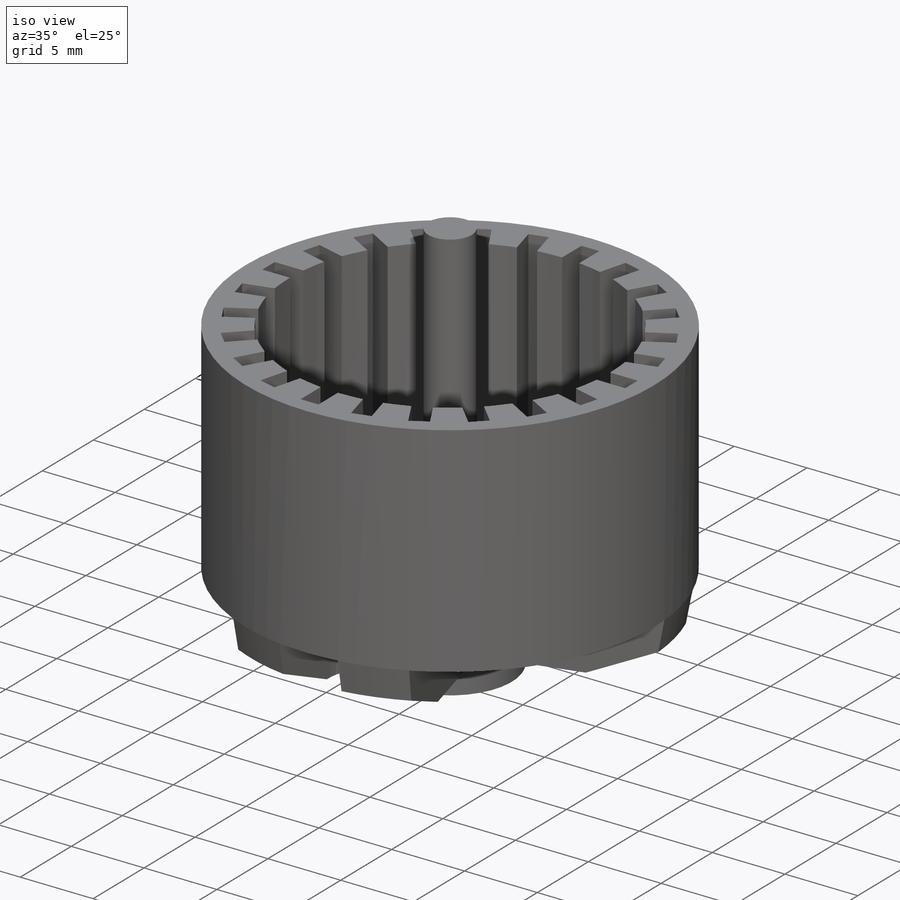
[diagram: iso view]
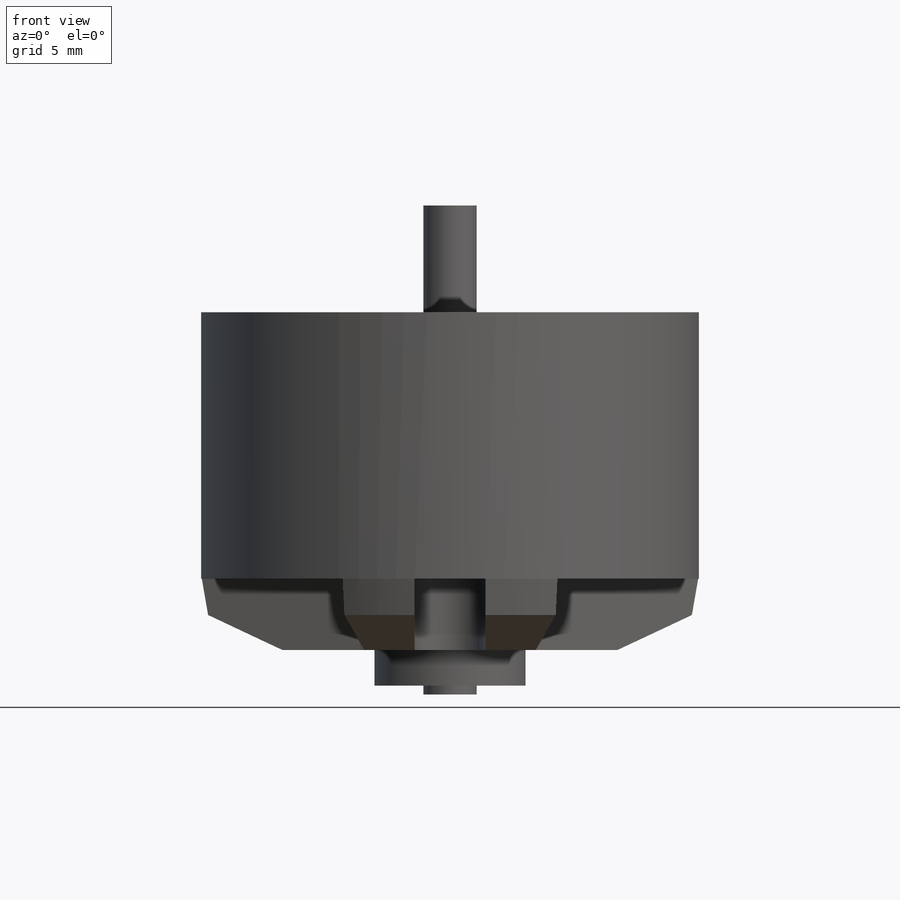
[diagram: front view]
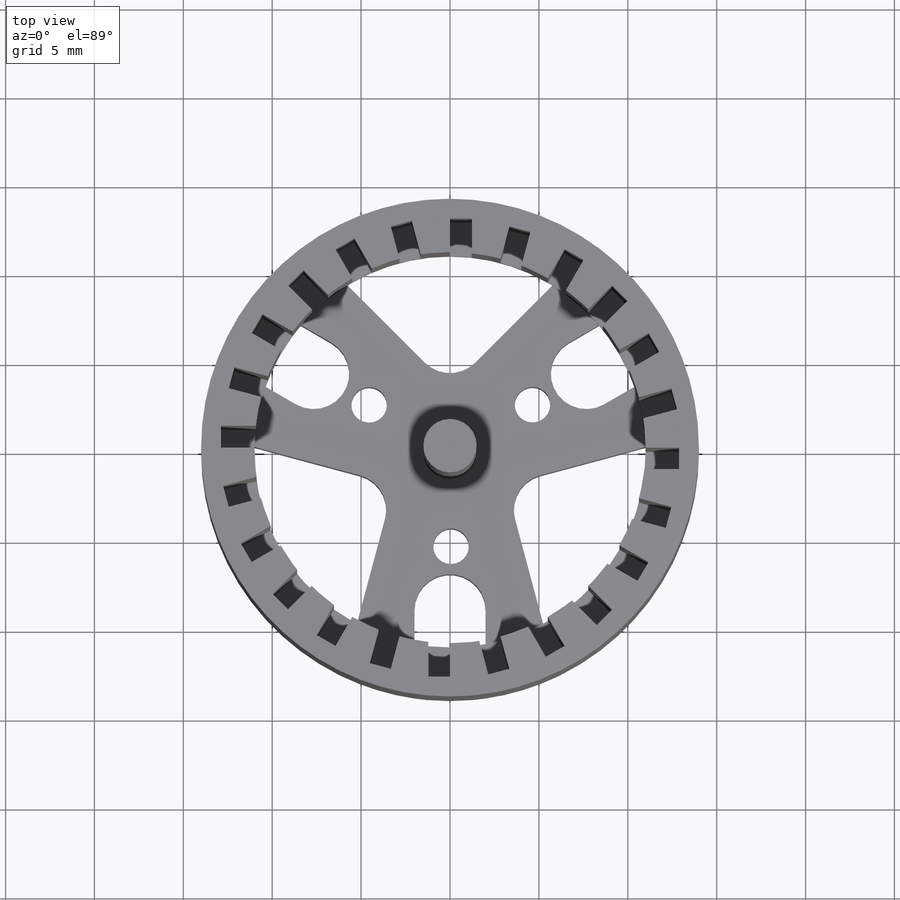
[diagram: top view]
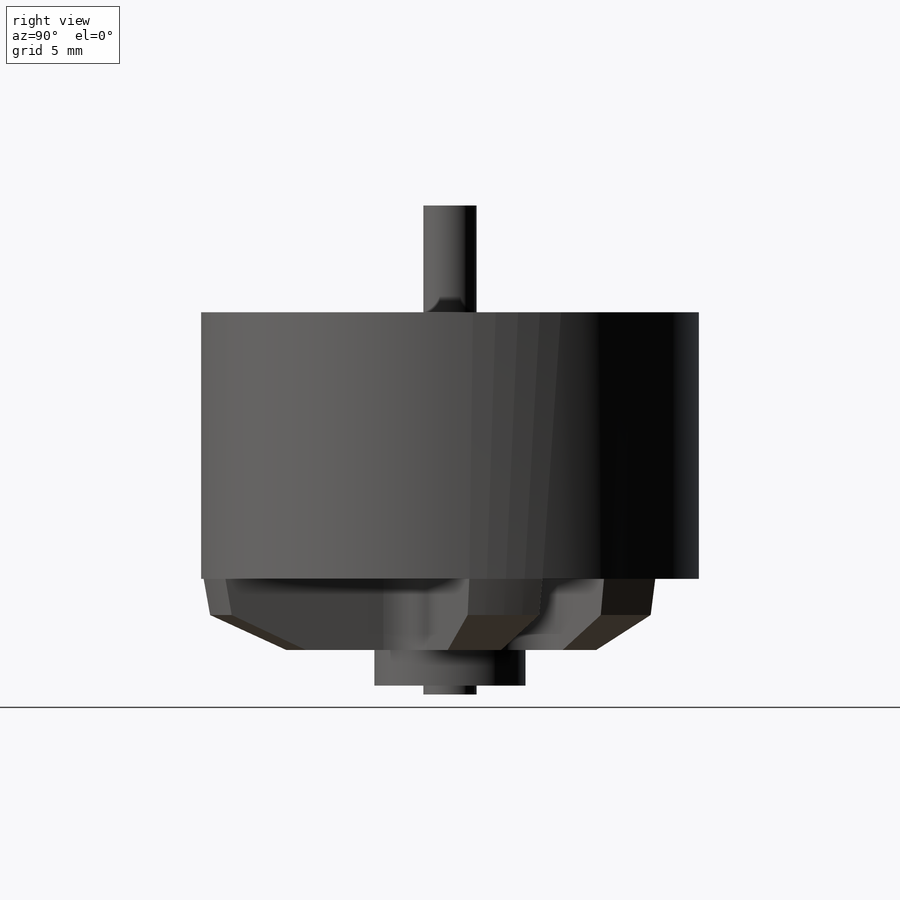
[diagram: right view]
SOLIDWORKS PART (.sldprt)
format: sldprt  version: not decoded by parser v0  size: 597,504 bytes
history: native  units: mm
features: sketch x10, extrude x4, cut_extrude x3, material x1, chamfer x1, fillet x1, hole x1 (+12 scaffold rows collapsed)
feature tree (33):
  scaffold x12  (default folders/planes/origin — collapsed)
  material  "Malzeme <belirli değil>"
  sketch  "Sketch1"  dims[D1=28.0mm D2=3.0mm]
  extrude  "OutShield"  Depth=15mm
  sketch  "Sketch3"  dims[D1=28.0mm]
  extrude  "AccessoriesHolder"  Depth=4mm
  sketch  "Sketch5"  dims[D1=8.5mm]
  extrude  "OuterShaft"  Depth=2mm
  sketch  "Sketch8"  dims[c1.D1=~12.124356mm c2.D1=70.0deg c2.D2=~19.79899mm c2.D3=~13.294692mm c3.D1=15.0mm c3.D3=15.0mm c3.D2=0.0mm c4.D1=~18.235068mm c5.D1=90.0deg c5.D2=~17.693364mm c6.D2=90.0deg c7.D2=~19.541117mm c7.D1=~17.693364mm c8.D1=90.0deg c9.D1=11.2mm c9.D2=3.6251mm c10.D2=60.0deg c11.D2=~2.769696mm c12.D2=120.0deg c12.D3=~1.236289mm c13.D3=120.0deg c13.D4=3.6251mm c13.D2=~65.973446mm]
  cut_extrude  "LightWeight"  Depth=4mm
  sketch  "Sketch9"  dims[c1.D1=14.0mm c1.D4=~2.10983mm c1.D2=1.5mm c2.D1=~3.815518mm c3.D1=90.0deg c4.D1=~7.442396mm c5.D1=~82.705322deg c6.D1=~4.913588mm c7.D1=270.0deg c7.D2=~5.631728mm c8.D2=270.0deg c8.D3=10.0mm c8.D4=5.0mm c8.D5=~4.149949mm c8.D1=3.0mm c9.D4=10.0mm c9.D1=5.0mm c9.D2=4.0mm c9.D3=3.0]
  cut_extrude  "LeightWeight2"  Depth=4mm
  chamfer  "Chamfer2"  Distance=2mm Angle=55deg
  sketch  "Sketch10"  dims[D1=3.0mm]
  extrude  "Shaft"  Depth=0.5mm
  sketch  "Sketch13"  dims[D1=24.0]
  cut_extrude  "NeodymMagnets"  Depth=13.8mm
  fillet  "Fillet1"  Radius=2mm
  hole  "Ø2.0 AccessoryHoles"  Diameter=2mm Depth=10mm
  sketch  "Sketch24"  dims[c1.D2=5.5mm c1.D3=~4.843002mm c2.D3=30.0deg c2.D2=1.5mm c2.D1=3.0]
  sketch  "Sketch23"  dims[hole-wizard template sketch: 50 standard entries collapsed; hole parameters above]
  sketch  "GuideForBlade"  dims[D1=20.0mm]
decode coverage: 20 of 20 modeling features carry decoded parameters
note: ~ marks probable driven/reference dimensions
note: suppression state not decoded; provenance and decode notes live in map.json
